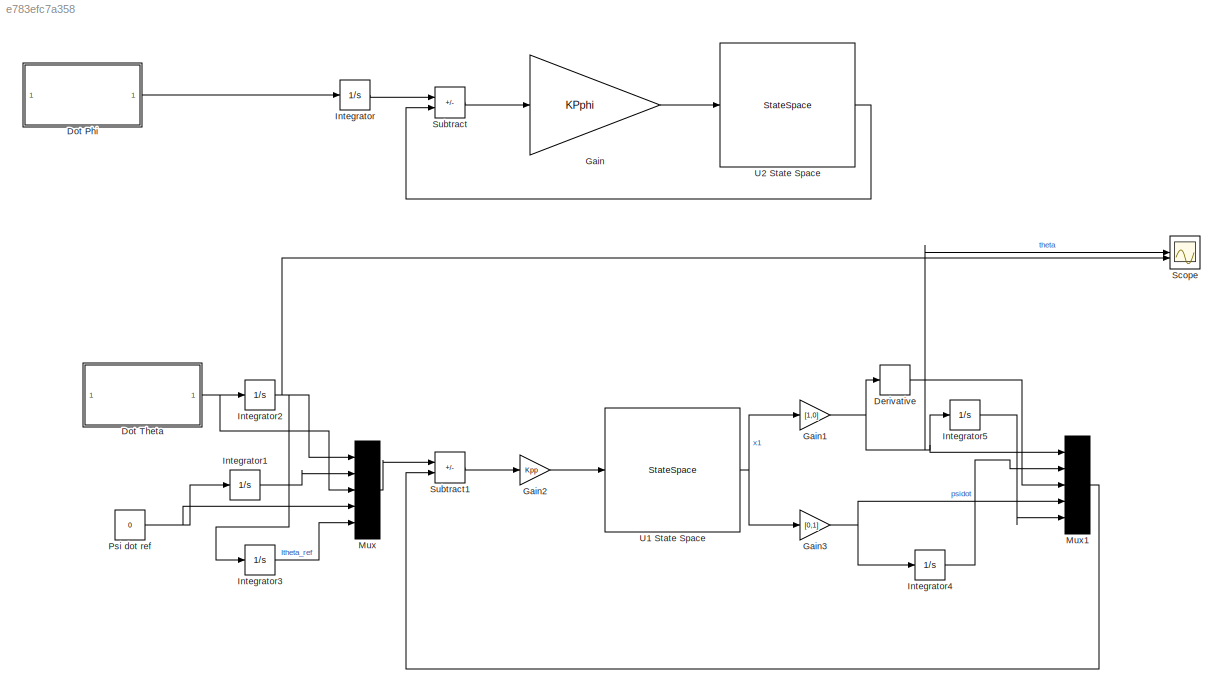
MODEL slx_e783efc7a358
KIND model
CONFIG AbsTol = auto
CONFIG EnableMultiTasking = on
CONFIG FixedStep = 1e-3
CONFIG MaxStep = auto
CONFIG MinStep = auto
CONFIG RelTol = 1e-3
CONFIG SampleTimeConstraint = Unconstrained
CONFIG SolverName = FixedStepAuto
CONFIG StartTime = 0.0
CONFIG StopTime = 45
BLOCK [Derivative] Derivative
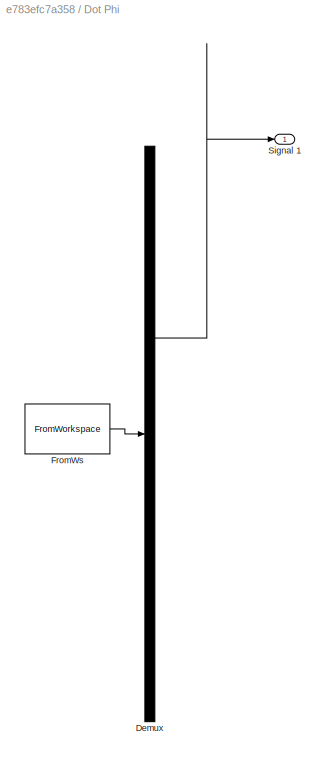
BLOCK [SubSystem] Dot Phi
  ClipboardFcn = sigbuilder_block('clipboard');
  CloseFcn = sigbuilder_block('close');
  ContinueFcn = sigbuilder_block('continue')
  CopyFcn = sigbuilder_block('copy');
  DeleteFcn = sigbuilder_block('delete');
  LoadFcn = sigbuilder_block('load');
  MaskHideContents = on
  ModelCloseFcn = sigbuilder_block('modelClose');
  NameChangeFcn = sigbuilder_block('namechange');
  OpenFcn = sigbuilder_block('open',[181.5 38.5 516 349.5 ]);
  PauseFcn = sigbuilder_block('pause')
  PreSaveFcn = sigbuilder_block('preSave');
  StartFcn = sigbuilder_block('start');
  StopFcn = sigbuilder_block('stop');
  Tag = STV Subsys
BLOCK [Demux] Dot Phi/Demux
  DisplayOption = none
  Outputs = 1
  Tag = STV Demux
BLOCK [FromWorkspace] Dot Phi/FromWs
  Tag = STV FromWs
  VariableName = tuvar
BLOCK [Outport] Dot Phi/Signal 1
  Tag = STV Outport
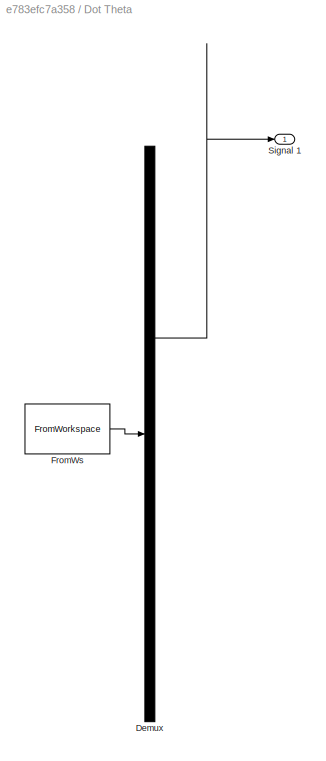
BLOCK [SubSystem] Dot Theta
  ClipboardFcn = sigbuilder_block('clipboard');
  CloseFcn = sigbuilder_block('close');
  ContinueFcn = sigbuilder_block('continue')
  CopyFcn = sigbuilder_block('copy');
  DeleteFcn = sigbuilder_block('delete');
  LoadFcn = sigbuilder_block('load',[181.5 38.5 516 349.5 ]);
  MaskHideContents = on
  ModelCloseFcn = sigbuilder_block('modelClose');
  NameChangeFcn = sigbuilder_block('namechange');
  OpenFcn = sigbuilder_block('open',[181.5 38.5 516 349.5 ]);
  PauseFcn = sigbuilder_block('pause')
  PreSaveFcn = sigbuilder_block('preSave');
  StartFcn = sigbuilder_block('start');
  StopFcn = sigbuilder_block('stop');
  Tag = STV Subsys
BLOCK [Demux] Dot Theta/Demux
  DisplayOption = none
  Outputs = 1
  Tag = STV Demux
BLOCK [FromWorkspace] Dot Theta/FromWs
  Tag = STV FromWs
  VariableName = tuvar
BLOCK [Outport] Dot Theta/Signal 1
  Tag = STV Outport
BLOCK [Gain] Gain
  Gain = KPphi
BLOCK [Gain] Gain1
  Gain = [1,0]
  Multiplication = Matrix(K*u) (u vector)
BLOCK [Gain] Gain2
  Gain = Kpp
  Multiplication = Matrix(K*u) (u vector)
BLOCK [Gain] Gain3
  Gain = [0,1]
  Multiplication = Matrix(K*u) (u vector)
BLOCK [Integrator] Integrator
BLOCK [Integrator] Integrator1
BLOCK [Integrator] Integrator2
BLOCK [Integrator] Integrator3
BLOCK [Integrator] Integrator4
BLOCK [Integrator] Integrator5
BLOCK [Mux] Mux
  DisplayOption = bar
  Inputs = 5
BLOCK [Mux] Mux1
  DisplayOption = bar
  Inputs = 5
BLOCK [Constant] Psi dot ref
  Value = 0
BLOCK [Scope] Scope
  Floating = off
  NumInputPorts = 2
  ScopeSpecificationString = Simulink.scopes.TimeScopeBlockCfg('CurrentConfiguration', extmgr.ConfigurationSet(extmgr.Configuration('Core','General UI',true),extmgr.Configuration('Core','Source UI',true),extmgr.Configuration('Sources','WiredSimulink',true),extmgr.Configuration('Visuals','Time Domain',true,'SerializedDisplays',{struct('MinYLimReal','-4.12795','MaxYLimReal','36.54533','YLabelReal','','MinYLimMag','0.00000','Max...<+1343ch>
BLOCK [Sum] Subtract
  IconShape = rectangular
  Inputs = +-
BLOCK [Sum] Subtract1
  IconShape = rectangular
  Inputs = +-
BLOCK [StateSpace] U1 State Space
  A = A1
  B = B1
  C = C1
  D = D1
  InitialCondition = 0
BLOCK [StateSpace] U2 State Space
  A = A2
  B = B2
  C = C2
  D = D2
  InitialCondition = 0
LINE Derivative:1 -> Mux1:3
LINE Dot Phi/Demux:1 -> Dot Phi/Signal 1:1
LINE Dot Phi/FromWs:1 -> Dot Phi/Demux:1
LINE Dot Phi:1 -> Integrator:1
LINE Dot Theta/Demux:1 -> Dot Theta/Signal 1:1
LINE Dot Theta/FromWs:1 -> Dot Theta/Demux:1
NET Dot Theta:1 -> Integrator2:1, Mux:3
NET Gain1:1 -> Derivative:1, Integrator5:1, Mux1:1, Scope:1
LINE Gain2:1 -> U1 State Space:1
NET Gain3:1 -> Integrator4:1, Mux1:4
LINE Gain:1 -> U2 State Space:1
LINE Integrator1:1 -> Mux:2
NET Integrator2:1 -> Integrator3:1, Mux:1, Scope:2
LINE Integrator3:1 -> Mux:5
LINE Integrator4:1 -> Mux1:2
LINE Integrator5:1 -> Mux1:5
LINE Integrator:1 -> Subtract:1
LINE Mux1:1 -> Subtract1:2
LINE Mux:1 -> Subtract1:1
NET Psi dot ref:1 -> Integrator1:1, Mux:4
LINE Subtract1:1 -> Gain2:1
LINE Subtract:1 -> Gain:1
NET U1 State Space:1 -> Gain1:1, Gain3:1
LINE U2 State Space:1 -> Subtract:2
note: NET lines group one-source signal fan-out (src -> all destinations, sorted); 1:1 wires keep LINE
